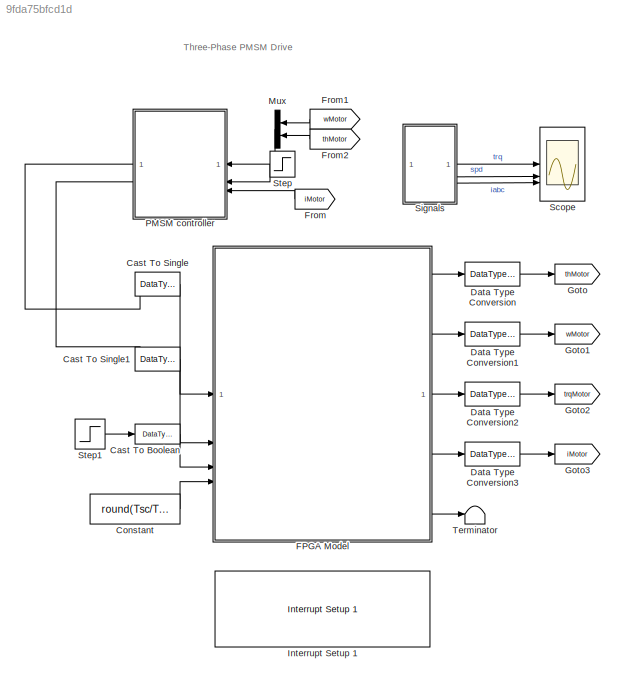
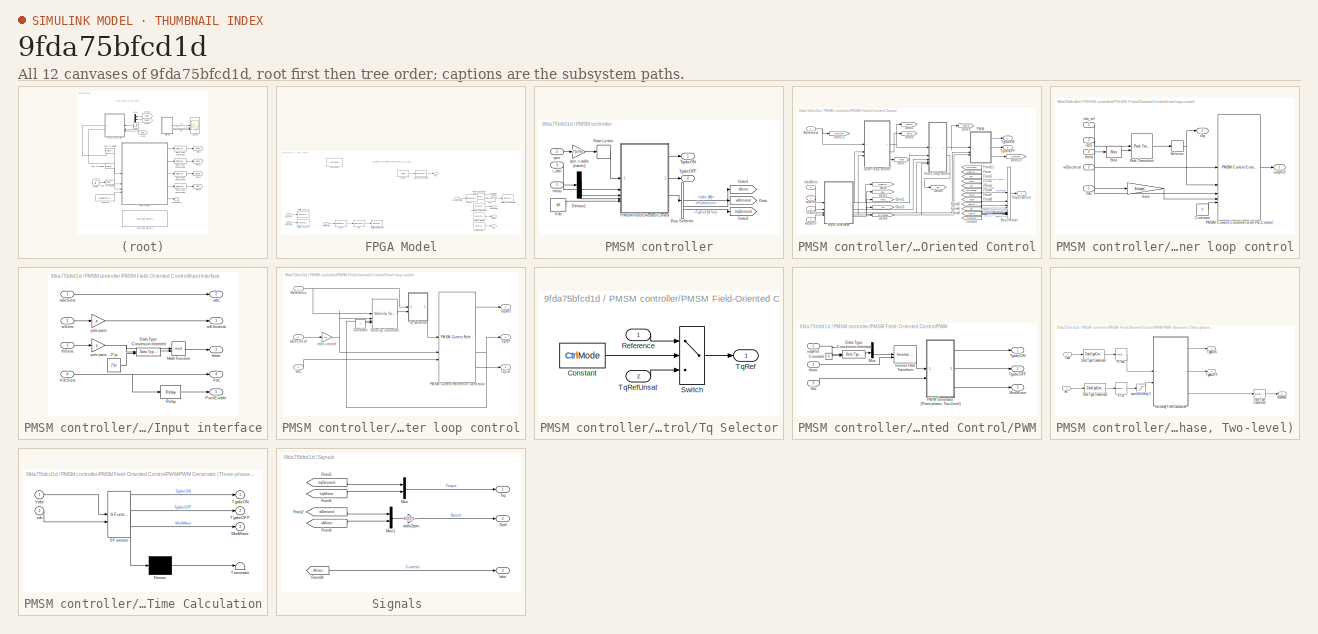
[diagram: thumbnail index - all 12 canvases of the model, root first then tree order]
MODEL slx_9fda75bfcd1d
KIND model
CONFIG AbsTol = auto
CONFIG EnableMultiTasking = off
CONFIG FixedStep = auto
CONFIG MaxStep = auto
CONFIG MinStep = auto
CONFIG PreLoadFcn = control_data;\npmsm_data;
CONFIG RelTol = 1e-3
CONFIG SampleTimeConstraint = Unconstrained
CONFIG SolverName = VariableStepAuto
CONFIG StartTime = 0.0
CONFIG StopTime = 10.0
BLOCK [DataTypeConversion] Cast To Boolean
  OutDataTypeStr = boolean
  RndMeth = Floor
  SaturateOnIntegerOverflow = off
BLOCK [DataTypeConversion] Cast To Single
  OutDataTypeStr = single
  RndMeth = Floor
  SaturateOnIntegerOverflow = off
BLOCK [DataTypeConversion] Cast To Single1
  OutDataTypeStr = single
  RndMeth = Floor
  SaturateOnIntegerOverflow = off
BLOCK [Constant] Constant
  OutDataTypeStr = uint16
  SampleTime = Inf
  Value = round(Tsc/Ts)
BLOCK [DataTypeConversion] Data Type Conversion
  RndMeth = Floor
  SaturateOnIntegerOverflow = off
BLOCK [DataTypeConversion] Data Type Conversion1
  RndMeth = Floor
  SaturateOnIntegerOverflow = off
BLOCK [DataTypeConversion] Data Type Conversion2
  RndMeth = Floor
  SaturateOnIntegerOverflow = off
BLOCK [DataTypeConversion] Data Type Conversion3
  RndMeth = Floor
  SaturateOnIntegerOverflow = off
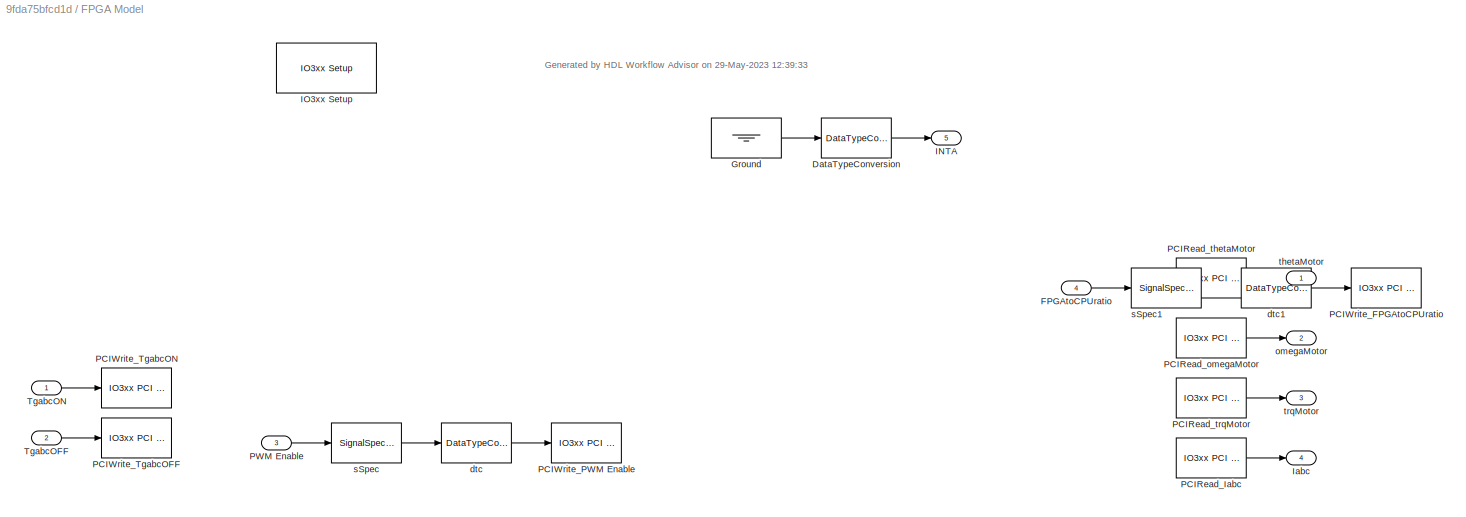
BLOCK [SubSystem] FPGA Model
BLOCK [DataTypeConversion] FPGA Model/DataTypeConversion
  ConvertRealWorld = Stored Integer (SI)
  OutDataTypeStr = fixdt('boolean')
  RndMeth = Floor
  SaturateOnIntegerOverflow = off
BLOCK [Inport] FPGA Model/FPGAtoCPUratio
  Port = 4
BLOCK [Ground] FPGA Model/Ground
BLOCK [Outport] FPGA Model/INTA
  Port = 5
BLOCK [Reference] FPGA Model/IO3xx Setup  REF=speedgoatlib_hdlCoder_IO3xx/IO3xx Setup
  SourceBlock = speedgoatlib_hdlCoder_IO3xx/IO3xx Setup
  SourceType = io3xx_fpga_board_setup
BLOCK [Outport] FPGA Model/Iabc
  Port = 4
BLOCK [Reference] FPGA Model/PCIRead_Iabc  REF=speedgoatlib_hdlCoder_IO3xx/IO3xx PCI Read
  SourceBlock = speedgoatlib_hdlCoder_IO3xx/IO3xx PCI Read
  SourceType = io3xx_read
BLOCK [Reference] FPGA Model/PCIRead_omegaMotor  REF=speedgoatlib_hdlCoder_IO3xx/IO3xx PCI Read
  SourceBlock = speedgoatlib_hdlCoder_IO3xx/IO3xx PCI Read
  SourceType = io3xx_read
BLOCK [Reference] FPGA Model/PCIRead_thetaMotor  REF=speedgoatlib_hdlCoder_IO3xx/IO3xx PCI Read
  SourceBlock = speedgoatlib_hdlCoder_IO3xx/IO3xx PCI Read
  SourceType = io3xx_read
BLOCK [Reference] FPGA Model/PCIRead_trqMotor  REF=speedgoatlib_hdlCoder_IO3xx/IO3xx PCI Read
  SourceBlock = speedgoatlib_hdlCoder_IO3xx/IO3xx PCI Read
  SourceType = io3xx_read
BLOCK [Reference] FPGA Model/PCIWrite_FPGAtoCPUratio  REF=speedgoatlib_hdlCoder_IO3xx/IO3xx PCI Write
  SourceBlock = speedgoatlib_hdlCoder_IO3xx/IO3xx PCI Write
  SourceType = io3xx_write
BLOCK [Reference] FPGA Model/PCIWrite_PWM Enable  REF=speedgoatlib_hdlCoder_IO3xx/IO3xx PCI Write
  SourceBlock = speedgoatlib_hdlCoder_IO3xx/IO3xx PCI Write
  SourceType = io3xx_write
BLOCK [Reference] FPGA Model/PCIWrite_TgabcOFF  REF=speedgoatlib_hdlCoder_IO3xx/IO3xx PCI Write
  SourceBlock = speedgoatlib_hdlCoder_IO3xx/IO3xx PCI Write
  SourceType = io3xx_write
BLOCK [Reference] FPGA Model/PCIWrite_TgabcON  REF=speedgoatlib_hdlCoder_IO3xx/IO3xx PCI Write
  SourceBlock = speedgoatlib_hdlCoder_IO3xx/IO3xx PCI Write
  SourceType = io3xx_write
BLOCK [Inport] FPGA Model/PWM Enable
  Port = 3
BLOCK [Inport] FPGA Model/TgabcOFF
  Port = 2
BLOCK [Inport] FPGA Model/TgabcON
BLOCK [DataTypeConversion] FPGA Model/dtc
  ConvertRealWorld = Stored Integer (SI)
  OutDataTypeStr = uint32
  SaturateOnIntegerOverflow = off
BLOCK [DataTypeConversion] FPGA Model/dtc1
  ConvertRealWorld = Stored Integer (SI)
  OutDataTypeStr = uint32
  SaturateOnIntegerOverflow = off
BLOCK [Outport] FPGA Model/omegaMotor
  Port = 2
BLOCK [SignalSpecification] FPGA Model/sSpec
  OutDataTypeStr = fixdt('boolean')
BLOCK [SignalSpecification] FPGA Model/sSpec1
  OutDataTypeStr = fixdt(0,16,0)
BLOCK [Outport] FPGA Model/thetaMotor
BLOCK [Outport] FPGA Model/trqMotor
  Port = 3
BLOCK [From] From
  GotoTag = iMotor
BLOCK [From] From1
  GotoTag = wMotor
  TagVisibility = global
BLOCK [From] From2
  GotoTag = thMotor
BLOCK [Goto] Goto
  GotoTag = thMotor
BLOCK [Goto] Goto1
  GotoTag = wMotor
  TagVisibility = global
BLOCK [Goto] Goto2
  GotoTag = trqMotor
  TagVisibility = global
BLOCK [Goto] Goto3
  GotoTag = iMotor
BLOCK [Reference] Interrupt Setup 1  REF=speedgoatlib_interrupt/Interrupt Setup 1
  SourceBlock = speedgoatlib_interrupt/Interrupt Setup 1
  SourceType = int_setup
BLOCK [Mux] Mux
  DisplayOption = bar
  Inputs = 2
BLOCK [SubSystem] PMSM controller
BLOCK [BusSelector] PMSM controller/Bus Selector
  OutputSignals = iabc [A],Reference,TqRef [N*m]
BLOCK [Demux] PMSM controller/Demux1
  Outputs = 2
BLOCK [Goto] PMSM controller/Goto
  GotoTag = wDemand
  NameLocation = top
  TagVisibility = global
BLOCK [Goto] PMSM controller/Goto1
  GotoTag = iMotor
  NameLocation = top
  TagVisibility = global
BLOCK [Goto] PMSM controller/Goto3
  GotoTag = trqDemand
  NameLocation = top
  TagVisibility = global
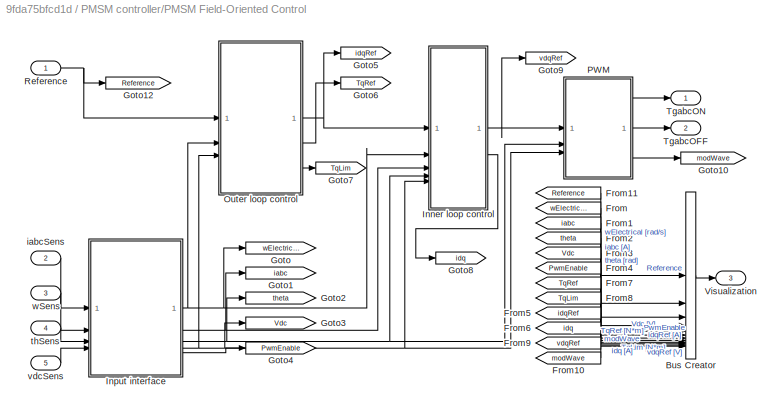
BLOCK [SubSystem] PMSM controller/PMSM Field-Oriented Control
  AncestorBlock = eePmsmFieldOrientedControl/PMSM Field-Oriented\nControl
  CloseFcn = ee_sli_rtmsupport( 'closefcn', gcbh );
  CopyFcn = ee_sli_rtmsupport( 'copyfcn', gcbh );
  DeleteFcn = ee_sli_rtmsupport( 'deletefcn', gcbh );
  LibrarySourceBlock = eePmsmFieldOrientedControl/PMSM Field-Oriented\nControl
  LoadFcn = ee_sli_rtmsupport( 'loadfcn', gcbh );
  ModelCloseFcn = ee_sli_rtmsupport( 'modelclosefcn', gcbh );
  OpenFcn = ee_sli_rtmsupport( 'openfcn', gcbh );
  PostSaveFcn = ee_sli_rtmsupport( 'postsavefcn', gcbh );
  PreCopyFcn = ee_sli_rtmsupport( 'precopyfcn', gcbh );
  PreDeleteFcn = ee_sli_rtmsupport( 'predeletefcn', gcbh );
BLOCK [BusCreator] PMSM controller/PMSM Field-Oriented Control/Bus Creator
  DisplayOption = bar
  InheritFromInputs = on
  Inputs = 12
BLOCK [From] PMSM controller/PMSM Field-Oriented Control/From
  GotoTag = wElectrical
BLOCK [From] PMSM controller/PMSM Field-Oriented Control/From1
  GotoTag = iabc
BLOCK [From] PMSM controller/PMSM Field-Oriented Control/From10
  GotoTag = modWave
BLOCK [From] PMSM controller/PMSM Field-Oriented Control/From11
  GotoTag = Reference
BLOCK [From] PMSM controller/PMSM Field-Oriented Control/From2
  GotoTag = theta
BLOCK [From] PMSM controller/PMSM Field-Oriented Control/From3
  GotoTag = Vdc
BLOCK [From] PMSM controller/PMSM Field-Oriented Control/From4
  GotoTag = PwmEnable
BLOCK [From] PMSM controller/PMSM Field-Oriented Control/From5
  GotoTag = idqRef
BLOCK [From] PMSM controller/PMSM Field-Oriented Control/From6
  GotoTag = idq
BLOCK [From] PMSM controller/PMSM Field-Oriented Control/From7
  GotoTag = TqRef
BLOCK [From] PMSM controller/PMSM Field-Oriented Control/From8
  GotoTag = TqLim
BLOCK [From] PMSM controller/PMSM Field-Oriented Control/From9
  GotoTag = vdqRef
BLOCK [Goto] PMSM controller/PMSM Field-Oriented Control/Goto
  GotoTag = wElectrical
BLOCK [Goto] PMSM controller/PMSM Field-Oriented Control/Goto1
  GotoTag = iabc
BLOCK [Goto] PMSM controller/PMSM Field-Oriented Control/Goto10
  GotoTag = modWave
BLOCK [Goto] PMSM controller/PMSM Field-Oriented Control/Goto12
  GotoTag = Reference
BLOCK [Goto] PMSM controller/PMSM Field-Oriented Control/Goto2
  GotoTag = theta
BLOCK [Goto] PMSM controller/PMSM Field-Oriented Control/Goto3
  GotoTag = Vdc
BLOCK [Goto] PMSM controller/PMSM Field-Oriented Control/Goto4
  GotoTag = PwmEnable
BLOCK [Goto] PMSM controller/PMSM Field-Oriented Control/Goto5
  GotoTag = idqRef
BLOCK [Goto] PMSM controller/PMSM Field-Oriented Control/Goto6
  GotoTag = TqRef
BLOCK [Goto] PMSM controller/PMSM Field-Oriented Control/Goto7
  GotoTag = TqLim
BLOCK [Goto] PMSM controller/PMSM Field-Oriented Control/Goto8
  GotoTag = idq
BLOCK [Goto] PMSM controller/PMSM Field-Oriented Control/Goto9
  GotoTag = vdqRef
BLOCK [SubSystem] PMSM controller/PMSM Field-Oriented Control/Inner loop control
BLOCK [Bias] PMSM controller/PMSM Field-Oriented Control/Inner loop control/Bias
  Bias = theta_offset
  SaturateOnIntegerOverflow = off
BLOCK [Constant] PMSM controller/PMSM Field-Oriented Control/Inner loop control/Constant
  SampleTime = -1
  Value = 0
BLOCK [Gain] PMSM controller/PMSM Field-Oriented Control/Inner loop control/Gain
  Gain = 1/sqrt(3)
BLOCK [Reference] PMSM controller/PMSM Field-Oriented Control/Inner loop control/PMSM Current Controller with Pre-Control  REF=eePmsmCurrentController/PMSM Current Controller
with Pre-Control
  LibrarySourceBlock = eePmsmFieldOrientedControl/PMSM Field-Oriented\nControl/Inner loop control/PMSM Current Controller\nwith Pre-Control
  SourceBlock = eePmsmCurrentController/PMSM Current Controller\nwith Pre-Control
  SourceType = PMSM Current Controller with Pre-Control
BLOCK [Reference] PMSM controller/PMSM Field-Oriented Control/Inner loop control/Park Transform  REF=eeTransforms/Park Transform
  LibrarySourceBlock = eePmsmFieldOrientedControl/PMSM Field-Oriented\nControl/Inner loop control/Park Transform
  SourceBlock = eeTransforms/Park Transform
  SourceType = Park Transform
BLOCK [Selector] PMSM controller/PMSM Field-Oriented Control/Inner loop control/Selector
  IndexOptions = Index vector (dialog)
  Indices = [1 2]
  InputPortWidth = 3
  OutputSizes = 1
BLOCK [Inport] PMSM controller/PMSM Field-Oriented Control/Inner loop control/Vdc
  Port = 5
BLOCK [Inport] PMSM controller/PMSM Field-Oriented Control/Inner loop control/iabc
  Port = 3
BLOCK [Outport] PMSM controller/PMSM Field-Oriented Control/Inner loop control/idq
  Port = 2
  VectorParamsAs1DForOutWhenUnconnected = off
BLOCK [Inport] PMSM controller/PMSM Field-Oriented Control/Inner loop control/idq_ref
BLOCK [Inport] PMSM controller/PMSM Field-Oriented Control/Inner loop control/theta
  Port = 4
BLOCK [Outport] PMSM controller/PMSM Field-Oriented Control/Inner loop control/vdqRef
  VectorParamsAs1DForOutWhenUnconnected = off
BLOCK [Inport] PMSM controller/PMSM Field-Oriented Control/Inner loop control/wElectrical
  Port = 2
BLOCK [SubSystem] PMSM controller/PMSM Field-Oriented Control/Input interface
BLOCK [Constant] PMSM controller/PMSM Field-Oriented Control/Input interface/2*pi
  OutDataTypeStr = Inherit: Inherit via back propagation
  SampleTime = Tsc
  Value = 2*pi
BLOCK [Reference] PMSM controller/PMSM Field-Oriented Control/Input interface/Data Type Conversion Inherited  REF=simulink/Signal
Attributes/Data Type
Conversion
Inherited
  SourceBlock = simulink/Signal\nAttributes/Data Type\nConversion\nInherited
  SourceType = Conversion Inherited
BLOCK [Math] PMSM controller/PMSM Field-Oriented Control/Input interface/Math Function
  Operator = mod
  SignedPower = on
BLOCK [Outport] PMSM controller/PMSM Field-Oriented Control/Input interface/PwmEnable
  Port = 5
  VectorParamsAs1DForOutWhenUnconnected = off
BLOCK [Relay] PMSM controller/PMSM Field-Oriented Control/Input interface/Relay
  OffSwitchValue = 0.5*Vdc_on
  OnSwitchValue = Vdc_on
BLOCK [Outport] PMSM controller/PMSM Field-Oriented Control/Input interface/Vdc
  Port = 4
  VectorParamsAs1DForOutWhenUnconnected = off
BLOCK [Inport] PMSM controller/PMSM Field-Oriented Control/Input interface/VdcSens
  Port = 4
BLOCK [Outport] PMSM controller/PMSM Field-Oriented Control/Input interface/iabc
  Port = 2
  VectorParamsAs1DForOutWhenUnconnected = off
BLOCK [Inport] PMSM controller/PMSM Field-Oriented Control/Input interface/iabcSens
BLOCK [Gain] PMSM controller/PMSM Field-Oriented Control/Input interface/pole pairs
  Gain = p
BLOCK [Gain] PMSM controller/PMSM Field-Oriented Control/Input interface/pole pairs 
  Gain = p
BLOCK [Inport] PMSM controller/PMSM Field-Oriented Control/Input interface/thSens
  Port = 3
BLOCK [Outport] PMSM controller/PMSM Field-Oriented Control/Input interface/theta
  Port = 3
  VectorParamsAs1DForOutWhenUnconnected = off
BLOCK [Outport] PMSM controller/PMSM Field-Oriented Control/Input interface/wElectrical
  VectorParamsAs1DForOutWhenUnconnected = off
BLOCK [Inport] PMSM controller/PMSM Field-Oriented Control/Input interface/wSens
  Port = 2
BLOCK [SubSystem] PMSM controller/PMSM Field-Oriented Control/Outer loop control
BLOCK [Constant] PMSM controller/PMSM Field-Oriented Control/Outer loop control/Constant
  OutDataTypeStr = Inherit: Inherit via back propagation
  SampleTime = -1
  Value = 0
BLOCK [Reference] PMSM controller/PMSM Field-Oriented Control/Outer loop control/PMSM Current Reference Generator  REF=eePmsmCurrentReferenceGen/PMSM Current Reference
Generator
  LibrarySourceBlock = eePmsmFieldOrientedControl/PMSM Field-Oriented\nControl/Outer loop control/PMSM Current Reference\nGenerator
  SourceBlock = eePmsmCurrentReferenceGen/PMSM Current Reference\nGenerator
  SourceType = PMSM Current Reference Generator
BLOCK [Inport] PMSM controller/PMSM Field-Oriented Control/Outer loop control/Reference
BLOCK [SubSystem] PMSM controller/PMSM Field-Oriented Control/Outer loop control/Tq Selector
BLOCK [Constant] PMSM controller/PMSM Field-Oriented Control/Outer loop control/Tq Selector/Constant
  SampleTime = Tsc
  Value = CtrlMode
BLOCK [Inport] PMSM controller/PMSM Field-Oriented Control/Outer loop control/Tq Selector/Reference
BLOCK [Switch] PMSM controller/PMSM Field-Oriented Control/Outer loop control/Tq Selector/Switch
  Criteria = u2 > Threshold
  InputSameDT = off
  SaturateOnIntegerOverflow = off
  Threshold = 1.5
BLOCK [Outport] PMSM controller/PMSM Field-Oriented Control/Outer loop control/Tq Selector/TqRef
  VectorParamsAs1DForOutWhenUnconnected = off
BLOCK [Inport] PMSM controller/PMSM Field-Oriented Control/Outer loop control/Tq Selector/TqRefUnsat
  Port = 2
BLOCK [Outport] PMSM controller/PMSM Field-Oriented Control/Outer loop control/TqLim
  Port = 3
  VectorParamsAs1DForOutWhenUnconnected = off
BLOCK [Outport] PMSM controller/PMSM Field-Oriented Control/Outer loop control/TqRef
  Port = 2
  VectorParamsAs1DForOutWhenUnconnected = off
BLOCK [Inport] PMSM controller/PMSM Field-Oriented Control/Outer loop control/Vdc
  Port = 3
BLOCK [Reference] PMSM controller/PMSM Field-Oriented Control/Outer loop control/Velocity Controller  REF=eeVelocityController/Velocity Controller
  LibrarySourceBlock = eePmsmFieldOrientedControl/PMSM Field-Oriented\nControl/Outer loop control/Velocity Controller
  SourceBlock = eeVelocityController/Velocity Controller
  SourceType = Velocity Controller
BLOCK [Gain] PMSM controller/PMSM Field-Oriented Control/Outer loop control/elec->mech
  Gain = 1/p
BLOCK [Outport] PMSM controller/PMSM Field-Oriented Control/Outer loop control/idqRef
  VectorParamsAs1DForOutWhenUnconnected = off
BLOCK [Inport] PMSM controller/PMSM Field-Oriented Control/Outer loop control/wElectrical
  Port = 2
BLOCK [SubSystem] PMSM controller/PMSM Field-Oriented Control/PWM
BLOCK [Constant] PMSM controller/PMSM Field-Oriented Control/PWM/Constant
  SampleTime = Tsc
  Value = 0
BLOCK [Reference] PMSM controller/PMSM Field-Oriented Control/PWM/Data Type Conversion Inherited  REF=simulink/Signal
Attributes/Data Type
Conversion
Inherited
  SourceBlock = simulink/Signal\nAttributes/Data Type\nConversion\nInherited
  SourceType = Conversion Inherited
BLOCK [Reference] PMSM controller/PMSM Field-Oriented Control/PWM/Inverse Park Transform  REF=eeTransforms/Inverse
Park Transform
  SourceBlock = eeTransforms/Inverse\nPark Transform
  SourceType = Inverse Park Transform
BLOCK [Outport] PMSM controller/PMSM Field-Oriented Control/PWM/ModWave
  Port = 3
  SampleTime = Tsc
  VectorParamsAs1DForOutWhenUnconnected = off
BLOCK [Mux] PMSM controller/PMSM Field-Oriented Control/PWM/Mux
  DisplayOption = bar
  Inputs = 2
BLOCK [SubSystem] PMSM controller/PMSM Field-Oriented Control/PWM/PWM Generator (Three-phase, Two-level)
  AncestorBlock = eePmsmFieldOrientedControl/PMSM Field-Oriented\nControl/PWM/PWM Generator\n(Three-phase, Two-level)
  CloseFcn = ee_sli_rtmsupport( 'closefcn', gcbh );
  CopyFcn = ee_sli_rtmsupport( 'copyfcn', gcbh );
  DeleteFcn = ee_sli_rtmsupport( 'deletefcn', gcbh );
  LibrarySourceBlock = eePmsmFieldOrientedControl/PMSM Field-Oriented\nControl/PWM/PWM Generator\n(Three-phase, Two-level)
  LoadFcn = ee_sli_rtmsupport( 'loadfcn', gcbh );
  ModelCloseFcn = ee_sli_rtmsupport( 'modelclosefcn', gcbh );
  OpenFcn = ee_sli_rtmsupport( 'openfcn', gcbh );
  PostSaveFcn = ee_sli_rtmsupport( 'postsavefcn', gcbh );
  PreCopyFcn = ee_sli_rtmsupport( 'precopyfcn', gcbh );
  PreDeleteFcn = ee_sli_rtmsupport( 'predeletefcn', gcbh );
  PreSaveFcn = %pe_sli_rtmsupport( 'presavefcn', gcbh );
BLOCK [DataTypeConversion] PMSM controller/PMSM Field-Oriented Control/PWM/PWM Generator (Three-phase, Two-level)/Data Type Conversion1
  RndMeth = Floor
  SaturateOnIntegerOverflow = off
BLOCK [DataTypeConversion] PMSM controller/PMSM Field-Oriented Control/PWM/PWM Generator (Three-phase, Two-level)/Data Type Conversion2
  OutDataTypeStr = double
  RndMeth = Floor
  SaturateOnIntegerOverflow = off
BLOCK [DataTypeConversion] PMSM controller/PMSM Field-Oriented Control/PWM/PWM Generator (Three-phase, Two-level)/Data Type Conversion3
  OutDataTypeStr = double
  RndMeth = Floor
  SaturateOnIntegerOverflow = off
BLOCK [Outport] PMSM controller/PMSM Field-Oriented Control/PWM/PWM Generator (Three-phase, Two-level)/ModWave
  Port = 3
  VectorParamsAs1DForOutWhenUnconnected = off
BLOCK [RateTransition] PMSM controller/PMSM Field-Oriented Control/PWM/PWM Generator (Three-phase, Two-level)/RTabc
  OutPortSampleTime = RateTransitionOnInput
BLOCK [RateTransition] PMSM controller/PMSM Field-Oriented Control/PWM/PWM Generator (Three-phase, Two-level)/RTdc
  OutPortSampleTime = RateTransitionOnInput
BLOCK [SubSystem] PMSM controller/PMSM Field-Oriented Control/PWM/PWM Generator (Three-phase, Two-level)/Switching Time Calculation
  ErrorFcn = Stateflow.Translate.translate
  PermitHierarchicalResolution = ExplicitOnly
  SFBlockType = MATLAB Function
  TreatAsAtomicUnit = on
BLOCK [Demux] PMSM controller/PMSM Field-Oriented Control/PWM/PWM Generator (Three-phase, Two-level)/Switching Time Calculation/ Demux 
  Outputs = 1
BLOCK [S-Function] PMSM controller/PMSM Field-Oriented Control/PWM/PWM Generator (Three-phase, Two-level)/Switching Time Calculation/ SFunction 
  EnableBusSupport = on
  FunctionName = sf_sfun
  Parameters = PWM,fsw
  PortCounts = [2 4]
  SFcnIsStateOwnerBlock = off
  SFunctionDeploymentMode = off
  Tag = Stateflow S-Function 7
BLOCK [Terminator] PMSM controller/PMSM Field-Oriented Control/PWM/PWM Generator (Three-phase, Two-level)/Switching Time Calculation/ Terminator 
BLOCK [Outport] PMSM controller/PMSM Field-Oriented Control/PWM/PWM Generator (Three-phase, Two-level)/Switching Time Calculation/ModWave
  Port = 3
  VectorParamsAs1DForOutWhenUnconnected = off
BLOCK [Outport] PMSM controller/PMSM Field-Oriented Control/PWM/PWM Generator (Three-phase, Two-level)/Switching Time Calculation/TgabcOFF
  Port = 2
  VectorParamsAs1DForOutWhenUnconnected = off
BLOCK [Outport] PMSM controller/PMSM Field-Oriented Control/PWM/PWM Generator (Three-phase, Two-level)/Switching Time Calculation/TgabcON
  VectorParamsAs1DForOutWhenUnconnected = off
BLOCK [Inport] PMSM controller/PMSM Field-Oriented Control/PWM/PWM Generator (Three-phase, Two-level)/Switching Time Calculation/Vabc
BLOCK [Inport] PMSM controller/PMSM Field-Oriented Control/PWM/PWM Generator (Three-phase, Two-level)/Switching Time Calculation/vdc
  Port = 2
BLOCK [Outport] PMSM controller/PMSM Field-Oriented Control/PWM/PWM Generator (Three-phase, Two-level)/TgabcOFF
  Port = 2
BLOCK [Outport] PMSM controller/PMSM Field-Oriented Control/PWM/PWM Generator (Three-phase, Two-level)/TgabcON
BLOCK [Inport] PMSM controller/PMSM Field-Oriented Control/PWM/PWM Generator (Three-phase, Two-level)/Vabc
BLOCK [Saturate] PMSM controller/PMSM Field-Oriented Control/PWM/PWM Generator (Three-phase, Two-level)/avoid division by 0
  LowerLimit = eps
  UpperLimit = inf
BLOCK [Inport] PMSM controller/PMSM Field-Oriented Control/PWM/PWM Generator (Three-phase, Two-level)/vdc
  Port = 2
BLOCK [Outport] PMSM controller/PMSM Field-Oriented Control/PWM/TgabcOFF
  Port = 2
BLOCK [Outport] PMSM controller/PMSM Field-Oriented Control/PWM/TgabcON
BLOCK [Inport] PMSM controller/PMSM Field-Oriented Control/PWM/Vdc
  Port = 3
BLOCK [Inport] PMSM controller/PMSM Field-Oriented Control/PWM/theta
  Port = 2
BLOCK [Inport] PMSM controller/PMSM Field-Oriented Control/PWM/vdqRef
BLOCK [Inport] PMSM controller/PMSM Field-Oriented Control/Reference
  SampleTime = Tsc
BLOCK [Outport] PMSM controller/PMSM Field-Oriented Control/TgabcOFF
  Port = 2
BLOCK [Outport] PMSM controller/PMSM Field-Oriented Control/TgabcON
BLOCK [Outport] PMSM controller/PMSM Field-Oriented Control/Visualization
  Port = 3
  VectorParamsAs1DForOutWhenUnconnected = off
BLOCK [Inport] PMSM controller/PMSM Field-Oriented Control/iabcSens
  Port = 2
  SampleTime = Tsc
BLOCK [Inport] PMSM controller/PMSM Field-Oriented Control/thSens
  Port = 4
  SampleTime = Tsc
BLOCK [Inport] PMSM controller/PMSM Field-Oriented Control/vdcSens
  Port = 5
  SampleTime = Tsc
BLOCK [Inport] PMSM controller/PMSM Field-Oriented Control/wSens
  Port = 3
  SampleTime = Tsc
BLOCK [RateLimiter] PMSM controller/Rate Limiter
  FallingSlewLimit = -Tmax/J
  NameLocation = top
  RisingSlewLimit = Tmax/J
  SampleTimeMode = inherited
BLOCK [Outport] PMSM controller/TgabcOFF
  Port = 2
BLOCK [Outport] PMSM controller/TgabcON
BLOCK [Constant] PMSM controller/Vdc
  SampleTime = Inf
  Value = 48
BLOCK [Inport] PMSM controller/i_abc
  Port = 3
BLOCK [Inport] PMSM controller/meas
BLOCK [Inport] PMSM controller/rpm
  Port = 2
BLOCK [Gain] PMSM controller/rpm -> rad//s [mech.]
  Gain = 2*pi/60
  NameLocation = top
BLOCK [Scope] Scope
  Floating = off
  NumInputPorts = 3
  ScopeSpecificationString = Simulink.scopes.TimeScopeBlockCfg('CurrentConfiguration', extmgr.ConfigurationSet(extmgr.Configuration('Core','General UI',true),extmgr.Configuration('Core','Source UI',true),extmgr.Configuration('Sources','WiredSimulink',true),extmgr.Configuration('Visuals','Time Domain',true,'SerializedDisplays',{struct('MinYLimReal','19.57136','MaxYLimReal','35.63305','YLabelReal','','MinYLimMag','19.57136','Ma...<+2724ch>
BLOCK [SubSystem] Signals 
BLOCK [From] Signals /From2
  GotoTag = wDemand
  TagVisibility = global
BLOCK [From] Signals /From34
  GotoTag = iMotor
  TagVisibility = global
BLOCK [From] Signals /From4
  GotoTag = wMotor
  TagVisibility = global
BLOCK [From] Signals /From5
  GotoTag = trqDemand
  TagVisibility = global
BLOCK [From] Signals /From6
  GotoTag = trqMotor
  TagVisibility = global
BLOCK [Outport] Signals /Iabc
  Port = 3
  VectorParamsAs1DForOutWhenUnconnected = off
BLOCK [Mux] Signals /Mux
  DisplayOption = bar
  Inputs = 2
BLOCK [Mux] Signals /Mux1
  DisplayOption = bar
  Inputs = 2
BLOCK [Outport] Signals /Spd
  Port = 2
  VectorParamsAs1DForOutWhenUnconnected = off
BLOCK [Outport] Signals /Trq
  VectorParamsAs1DForOutWhenUnconnected = off
BLOCK [Gain] Signals /rad//s2rpm
  Gain = 60/(2*pi)
BLOCK [Step] Step
  After = 500
  Time = 0.1
BLOCK [Step] Step1
  Time = 1e-4
BLOCK [Terminator] Terminator
ANNOTATION (root): Three-Phase PMSM Drive
ANNOTATION FPGA Model: Generated by HDL Workflow Advisor on 29-May-2023 12:39:33
LINE Cast To Boolean:1 -> FPGA Model:3
LINE Cast To Single1:1 -> FPGA Model:2
LINE Cast To Single:1 -> FPGA Model:1
LINE Constant:1 -> FPGA Model:4
LINE Data Type Conversion1:1 -> Goto1:1
LINE Data Type Conversion2:1 -> Goto2:1
LINE Data Type Conversion3:1 -> Goto3:1
LINE Data Type Conversion:1 -> Goto:1
LINE FPGA Model/DataTypeConversion:1 -> FPGA Model/INTA:1
LINE FPGA Model/FPGAtoCPUratio:1 -> FPGA Model/sSpec1:1
LINE FPGA Model/Ground:1 -> FPGA Model/DataTypeConversion:1
LINE FPGA Model/PCIRead_Iabc:1 -> FPGA Model/Iabc:1
LINE FPGA Model/PCIRead_omegaMotor:1 -> FPGA Model/omegaMotor:1
LINE FPGA Model/PCIRead_thetaMotor:1 -> FPGA Model/thetaMotor:1
LINE FPGA Model/PCIRead_trqMotor:1 -> FPGA Model/trqMotor:1
LINE FPGA Model/PWM Enable:1 -> FPGA Model/sSpec:1
LINE FPGA Model/TgabcOFF:1 -> FPGA Model/PCIWrite_TgabcOFF:1
LINE FPGA Model/TgabcON:1 -> FPGA Model/PCIWrite_TgabcON:1
LINE FPGA Model/dtc1:1 -> FPGA Model/PCIWrite_FPGAtoCPUratio:1
LINE FPGA Model/dtc:1 -> FPGA Model/PCIWrite_PWM Enable:1
LINE FPGA Model/sSpec1:1 -> FPGA Model/dtc1:1
LINE FPGA Model/sSpec:1 -> FPGA Model/dtc:1
LINE FPGA Model:1 -> Data Type Conversion:1
LINE FPGA Model:2 -> Data Type Conversion1:1
LINE FPGA Model:3 -> Data Type Conversion2:1
LINE FPGA Model:4 -> Data Type Conversion3:1
LINE FPGA Model:5 -> Terminator:1
LINE From1:1 -> Mux:1
LINE From2:1 -> Mux:2
LINE From:1 -> PMSM controller:3
LINE Mux:1 -> PMSM controller:1
LINE PMSM controller/Bus Selector:1 -> PMSM controller/Goto1:1
LINE PMSM controller/Bus Selector:2 -> PMSM controller/Goto:1
LINE PMSM controller/Bus Selector:3 -> PMSM controller/Goto3:1
LINE PMSM controller/Demux1:1 -> PMSM controller/PMSM Field-Oriented Control:3
LINE PMSM controller/Demux1:2 -> PMSM controller/PMSM Field-Oriented Control:4
LINE PMSM controller/PMSM Field-Oriented Control:1 -> PMSM controller/TgabcON:1
LINE PMSM controller/PMSM Field-Oriented Control:2 -> PMSM controller/TgabcOFF:1
LINE PMSM controller/PMSM Field-Oriented Control:3 -> PMSM controller/Bus Selector:1
LINE PMSM controller/Rate Limiter:1 -> PMSM controller/PMSM Field-Oriented Control:1
LINE PMSM controller/Vdc:1 -> PMSM controller/PMSM Field-Oriented Control:5
LINE PMSM controller/i_abc:1 -> PMSM controller/PMSM Field-Oriented Control:2
LINE PMSM controller/meas:1 -> PMSM controller/Demux1:1
LINE PMSM controller/rpm -> rad//s [mech.]:1 -> PMSM controller/Rate Limiter:1
LINE PMSM controller/rpm:1 -> PMSM controller/rpm -> rad//s [mech.]:1
LINE PMSM controller:1 -> Cast To Single:1
LINE PMSM controller:2 -> Cast To Single1:1
LINE Signals /From2:1 -> Signals /Mux1:1
LINE Signals /From34:1 -> Signals /Iabc:1
LINE Signals /From4:1 -> Signals /Mux1:2
LINE Signals /From5:1 -> Signals /Mux:1
LINE Signals /From6:1 -> Signals /Mux:2
LINE Signals /Mux1:1 -> Signals /rad//s2rpm:1
LINE Signals /Mux:1 -> Signals /Trq:1
LINE Signals /rad//s2rpm:1 -> Signals /Spd:1
LINE Signals :1 -> Scope:1
LINE Signals :2 -> Scope:2
LINE Signals :3 -> Scope:3
LINE Step1:1 -> Cast To Boolean:1
LINE Step:1 -> PMSM controller:2
CHART PMSM controller/PMSM Field-Oriented
Control/PWM/PWM Generator
(Three-phase, Two-level)/Switching Time
Calculation states=1 transitions=1
  STATE_LABEL 'eML_blk_kernel()'
  STATE_LABEL 'SCRIPT:\nfunction [TgabcON,TgabcOFF,ModWave]  = switchingTime(Vabc,vdc,fsw,PWM)\n\n[TgabcON,TgabcOFF,ModWave] = ee.control.pwmSwitchingTimeTwoLevel(Vabc,vdc,fsw,PWM);\n        '
CHART  states=0 transitions=0
